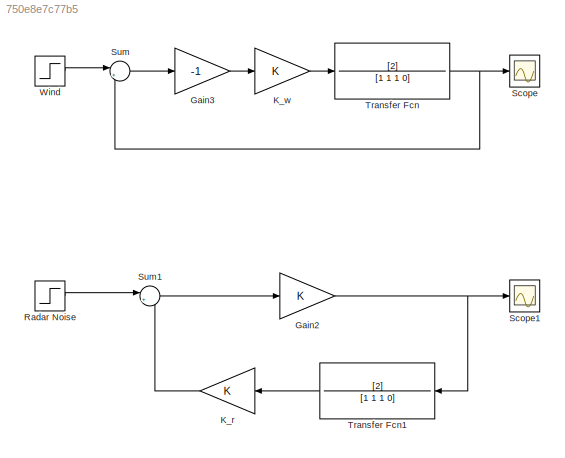
MODEL slx_750e8e7c77b5
KIND model
CONFIG AbsTol = auto
CONFIG EnableMultiTasking = off
CONFIG FixedStep = auto
CONFIG MaxStep = auto
CONFIG MinStep = auto
CONFIG RelTol = 1e-3
CONFIG SampleTimeConstraint = Unconstrained
CONFIG SolverName = VariableStepAuto
CONFIG StartTime = 0.0
CONFIG StopTime = 100
BLOCK [Gain] Gain2
BLOCK [Gain] Gain3
  Gain = -1
BLOCK [Gain] K_r
  NameLocation = top
BLOCK [Gain] K_w
BLOCK [Step] Radar Noise
BLOCK [Scope] Scope
  Floating = off
  NumInputPorts = 1
  Ports = [1]
  ScopeSpecificationString = Simulink.scopes.TimeScopeBlockCfg('CurrentConfiguration', extmgr.ConfigurationSet(extmgr.Configuration('Core','General UI',true),extmgr.Configuration('Core','Source UI',true),extmgr.Configuration('Sources','WiredSimulink',true),extmgr.Configuration('Visuals','Time Domain',true,'SerializedDisplays',{struct('MinYLimReal','-23267804.51548','MaxYLimReal','23916802.22624','YLabelReal','','MinYLimMag','...<+1415ch>
BLOCK [Scope] Scope1
  Floating = off
  NumInputPorts = 1
  Ports = [1]
  ScopeSpecificationString = Simulink.scopes.TimeScopeBlockCfg('CurrentConfiguration', extmgr.ConfigurationSet(extmgr.Configuration('Core','General UI',true),extmgr.Configuration('Core','Source UI',true),extmgr.Configuration('Sources','WiredSimulink',true,'DataLoggingVariableName','ScopeData1'),extmgr.Configuration('Visuals','Time Domain',true,'SerializedDisplays',{struct('MinYLimReal','-23267803.51548','MaxYLimReal','2391680...<+1446ch>
BLOCK [Sum] Sum
  Inputs = |++
  Ports = [2, 1]
BLOCK [Sum] Sum1
  Inputs = |+-
  Ports = [2, 1]
BLOCK [TransferFcn] Transfer Fcn
  Denominator = [1 1 1 0]
  Numerator = [2]
BLOCK [TransferFcn] Transfer Fcn1
  Denominator = [1 1 1 0]
  Numerator = [2]
BLOCK [Step] Wind
  SampleTime = 0
NET Gain2:1 -> Scope1:1, Transfer Fcn1:1
LINE Gain3:1 -> K_w:1
LINE K_r:1 -> Sum1:2
LINE K_w:1 -> Transfer Fcn:1
LINE Radar Noise:1 -> Sum1:1
LINE Sum1:1 -> Gain2:1
LINE Sum:1 -> Gain3:1
LINE Transfer Fcn1:1 -> K_r:1
NET Transfer Fcn:1 -> Scope:1, Sum:2
LINE Wind:1 -> Sum:1
note: NET lines group one-source signal fan-out (src -> all destinations, sorted); 1:1 wires keep LINE
